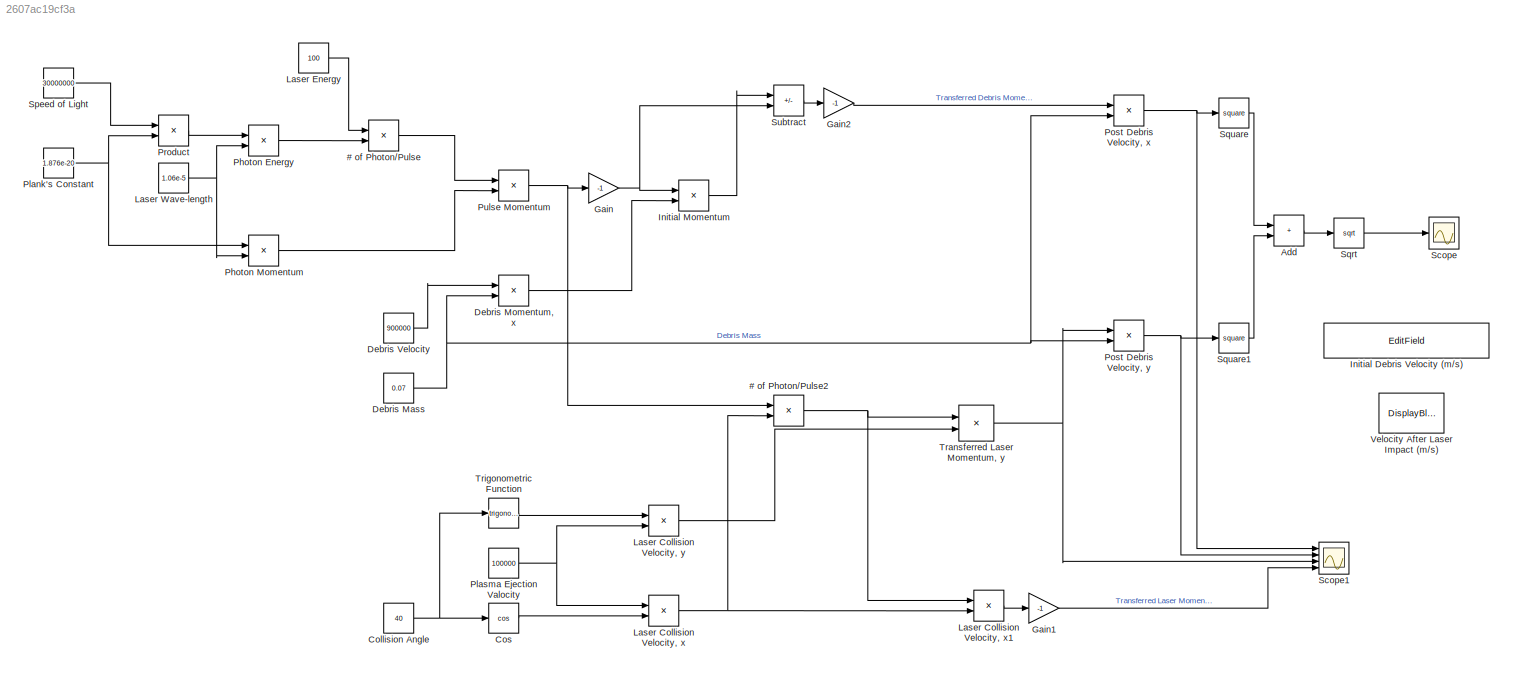
MODEL slx_2607ac19cf3a
KIND model
CONFIG AbsTol = auto
CONFIG EnableMultiTasking = off
CONFIG FixedStep = auto
CONFIG MaxStep = auto
CONFIG MinStep = auto
CONFIG RelTol = 1e-3
CONFIG SampleTimeConstraint = Unconstrained
CONFIG Solver = VariableStepAuto
CONFIG SolverName = VariableStepAuto
CONFIG StartTime = 0.0
CONFIG StopTime = 10.0
BLOCK [Product]  Transferred Laser Momentum, y
  Ports = [2, 1]
BLOCK [Product] # of Photon//Pulse
  Inputs = */
  Ports = [2, 1]
BLOCK [Product] # of Photon//Pulse2
  Inputs = */
  Ports = [2, 1]
BLOCK [Sum] Add
  IconShape = rectangular
  Ports = [2, 1]
BLOCK [Constant] Collision Angle
  OutDataTypeStr = Inherit: Inherit via back propagation
  Value = 40
BLOCK [Trigonometry] Cos
  Operator = cos
  Ports = [1, 1]
BLOCK [Constant] Debris Mass
  OutDataTypeStr = Inherit: Inherit via back propagation
  Value = 0.07
BLOCK [Product] Debris Momentum, x
  Ports = [2, 1]
BLOCK [Constant] Debris Velocity
  OutDataTypeStr = Inherit: Inherit via back propagation
  Value = 900000
BLOCK [Gain] Gain
  Gain = -1
BLOCK [Gain] Gain1
  Gain = -1
BLOCK [Gain] Gain2
  Gain = -1
BLOCK [EditField] Initial Debris Velocity (m//s)
  Alignment = Center
  LabelPosition = Hide
  ShowInitialText = on
BLOCK [Product] Initial Momentum
  Ports = [2, 1]
BLOCK [Product] Laser Collision Velocity, x
  Ports = [2, 1]
BLOCK [Product] Laser Collision Velocity, x1
  Ports = [2, 1]
BLOCK [Product] Laser Collision Velocity, y
  Ports = [2, 1]
BLOCK [Constant] Laser Energy
  OutDataTypeStr = Inherit: Inherit via back propagation
  Value = 100
BLOCK [Constant] Laser Wave-length
  OutDataTypeStr = Inherit: Inherit via back propagation
  Value = 1.06e-5
BLOCK [Product] Photon Energy
  Inputs = */
  Ports = [2, 1]
BLOCK [Product] Photon Momentum
  Inputs = */
  Ports = [2, 1]
BLOCK [Constant] Plank's Constant
  OutDataTypeStr = Inherit: Inherit via back propagation
  Value = 1.876e-20
BLOCK [Constant] Plasma Ejection Valocity
  OutDataTypeStr = Inherit: Inherit via back propagation
  Value = 100000
BLOCK [Product] Post Debris Velocity, x
  Inputs = */
  Ports = [2, 1]
BLOCK [Product] Post Debris Velocity, y
  Inputs = */
  Ports = [2, 1]
BLOCK [Product] Product
  Ports = [2, 1]
BLOCK [Product] Pulse Momentum
  Ports = [2, 1]
BLOCK [Scope] Scope
  Floating = off
  NumInputPorts = 1
  Ports = [1]
  ScopeSpecificationString = Simulink.scopes.TimeScopeBlockCfg('CurrentConfiguration', extmgr.ConfigurationSet(extmgr.Configuration('Core','General UI',true),extmgr.Configuration('Core','Source UI',true),extmgr.Configuration('Sources','WiredSimulink',true),extmgr.Configuration('Visuals','Time Domain',true,'SerializedDisplays',{struct('MinYLimReal','0.23329','MaxYLimReal','0.43329','YLabelReal','','MinYLimMag','0.23329','MaxYL...<+1388ch>
BLOCK [Scope] Scope1
  Floating = off
  NumInputPorts = 4
  Ports = [4]
  ScopeSpecificationString = Simulink.scopes.TimeScopeBlockCfg('CurrentConfiguration', extmgr.ConfigurationSet(extmgr.Configuration('Core','General UI',true),extmgr.Configuration('Core','Source UI',true),extmgr.Configuration('Sources','WiredSimulink',true,'DataLoggingVariableName','ScopeData1'),extmgr.Configuration('Visuals','Time Domain',true,'SerializedDisplays',{struct('MinYLimReal','-0.04172','MaxYLimReal','0.37495','YLab...<+3815ch>
BLOCK [Constant] Speed of Light
  OutDataTypeStr = Inherit: Inherit via back propagation
  Value = 30000000
BLOCK [Sqrt] Sqrt
BLOCK [Math] Square
  Operator = square
  Ports = [1, 1]
BLOCK [Math] Square1
  Operator = square
  Ports = [1, 1]
BLOCK [Sum] Subtract
  IconShape = rectangular
  Inputs = +-
  Ports = [2, 1]
BLOCK [Trigonometry] Trigonometric Function
  Ports = [1, 1]
BLOCK [DisplayBlock] Velocity After Laser Impact (m//s)
  Format = short
  LabelPosition = Hide
  Transparency = 1
NET  Transferred Laser Momentum, y:1 -> Post Debris Velocity, y:1, Scope1:3
NET # of Photon//Pulse2:1 ->  Transferred Laser Momentum, y:1, Laser Collision Velocity, x1:1
LINE # of Photon//Pulse:1 -> Pulse Momentum:1
LINE Add:1 -> Sqrt:1
NET Collision Angle:1 -> Cos:1, Trigonometric Function:1
LINE Cos:1 -> Laser Collision Velocity, x:2
NET Debris Mass:1 -> Debris Momentum, x:2, Post Debris Velocity, x:2, Post Debris Velocity, y:2
LINE Debris Momentum, x:1 -> Initial Momentum:2
LINE Debris Velocity:1 -> Debris Momentum, x:1
LINE Gain1:1 -> Scope1:4
LINE Gain2:1 -> Post Debris Velocity, x:1
NET Gain:1 -> Initial Momentum:1, Subtract:2
LINE Initial Momentum:1 -> Subtract:1
LINE Laser Collision Velocity, x1:1 -> Gain1:1
NET Laser Collision Velocity, x:1 -> # of Photon//Pulse2:2, Laser Collision Velocity, x1:2
LINE Laser Collision Velocity, y:1 ->  Transferred Laser Momentum, y:2
LINE Laser Energy:1 -> # of Photon//Pulse:1
NET Laser Wave-length:1 -> Photon Energy:2, Photon Momentum:2
LINE Photon Energy:1 -> # of Photon//Pulse:2
LINE Photon Momentum:1 -> Pulse Momentum:2
NET Plank's Constant:1 -> Photon Momentum:1, Product:2
NET Plasma Ejection Valocity:1 -> Laser Collision Velocity, x:1, Laser Collision Velocity, y:2
NET Post Debris Velocity, x:1 -> Scope1:1, Square:1
NET Post Debris Velocity, y:1 -> Scope1:2, Square1:1
LINE Product:1 -> Photon Energy:1
NET Pulse Momentum:1 -> # of Photon//Pulse2:1, Gain:1
LINE Speed of Light:1 -> Product:1
LINE Sqrt:1 -> Scope:1
LINE Square1:1 -> Add:2
LINE Square:1 -> Add:1
LINE Subtract:1 -> Gain2:1
LINE Trigonometric Function:1 -> Laser Collision Velocity, y:1
note: NET lines group one-source signal fan-out (src -> all destinations, sorted); 1:1 wires keep LINE
